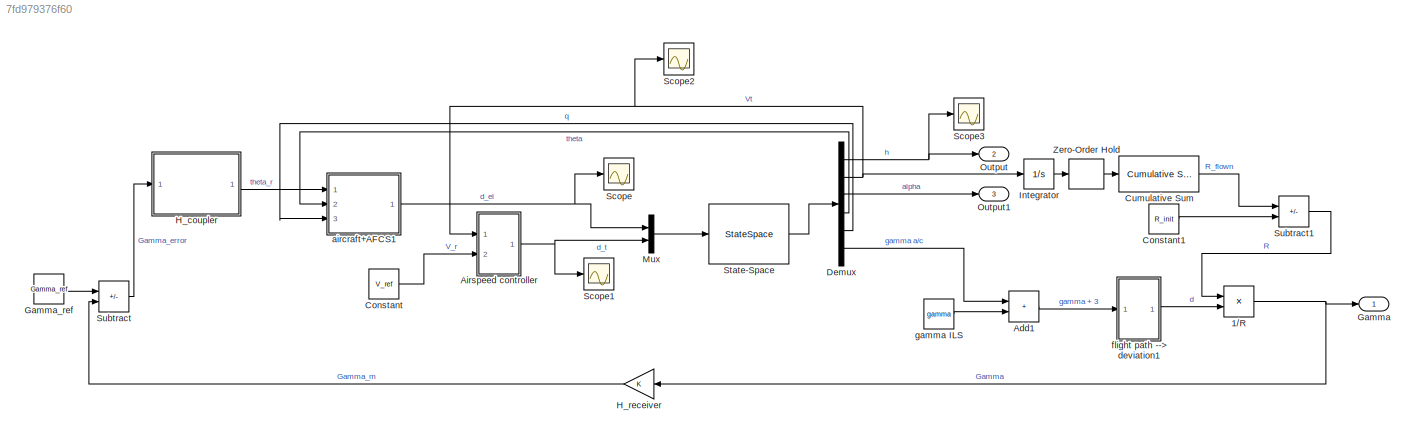
MODEL slx_7fd979376f60
KIND model
CONFIG AbsTol = auto
CONFIG EnableMultiTasking = off
CONFIG FixedStep = auto
CONFIG MaxStep = auto
CONFIG MinStep = auto
CONFIG RelTol = 1e-3
CONFIG SampleTimeConstraint = Unconstrained
CONFIG SolverName = VariableStepAuto
CONFIG StartTime = 0.0
CONFIG StopTime = 10.0
BLOCK [Product] 1//R
  Inputs = /*
  Ports = [2, 1]
BLOCK [Sum] Add1
  IconShape = rectangular
  Ports = [2, 1]
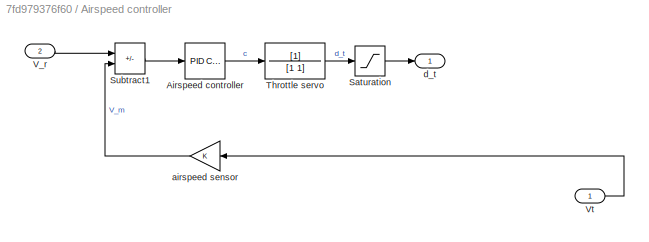
BLOCK [SubSystem] Airspeed controller
  Ports = [2, 1]
  RequestExecContextInheritance = off
BLOCK [Reference] Airspeed controller/Airspeed controller  REF=pid_lib/PID Controller
  Ports = [1, 1]
  SourceBlock = pid_lib/PID Controller
  SourceProductBaseCode = SL
  SourceType = PID 1dof
BLOCK [Saturate] Airspeed controller/Saturation
  LowerLimit = -1826.82
  UpperLimit = 16173.18
BLOCK [Sum] Airspeed controller/Subtract1
  IconShape = rectangular
  Inputs = +-
  Ports = [2, 1]
BLOCK [TransferFcn] Airspeed controller/Throttle servo
  Denominator = [1 1]
BLOCK [Inport] Airspeed controller/V_r
  Port = 2
BLOCK [Inport] Airspeed controller/Vt
BLOCK [Gain] Airspeed controller/airspeed sensor
BLOCK [Outport] Airspeed controller/d_t
BLOCK [Constant] Constant
  Value = V_ref
BLOCK [Constant] Constant1
  Value = R_init
BLOCK [Reference] Cumulative Sum  REF=dspmathops/Cumulative
Sum
  Ports = [1, 1]
  SourceBlock = dspmathops/Cumulative\nSum
  SourceProductBaseCode = DS
  SourceType = Cumulative Sum
  UserDataPersistent = on
BLOCK [Demux] Demux
  Outputs = 6
  Ports = [1, 6]
BLOCK [Outport] Gamma
  IconDisplay = Signal name
BLOCK [Constant] Gamma_ref
  Value = Gamma_ref
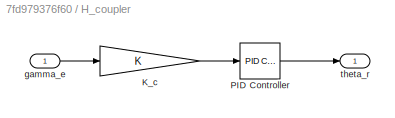
BLOCK [SubSystem] H_coupler
  Ports = [1, 1]
  RequestExecContextInheritance = off
BLOCK [Gain] H_coupler/K_c
BLOCK [Reference] H_coupler/PID Controller  REF=pid_lib/PID Controller
  Ports = [1, 1]
  SourceBlock = pid_lib/PID Controller
  SourceProductBaseCode = SL
  SourceType = PID 1dof
BLOCK [Inport] H_coupler/gamma_e
BLOCK [Outport] H_coupler/theta_r
BLOCK [Gain] H_receiver
BLOCK [Integrator] Integrator
  Ports = [1, 1]
BLOCK [Mux] Mux
  DisplayOption = bar
  Inputs = 2
  Ports = [2, 1]
BLOCK [Outport] Output
  IconDisplay = Signal name
  Port = 2
BLOCK [Outport] Output1
  IconDisplay = Signal name
  Port = 3
BLOCK [Scope] Scope
  Floating = off
  NumInputPorts = 1
  Ports = [1]
  ScopeSpecificationString = Simulink.scopes.TimeScopeBlockCfg('CurrentConfiguration', extmgr.ConfigurationSet(extmgr.Configuration('Core','General UI',true),extmgr.Configuration('Core','Source UI',true),extmgr.Configuration('Sources','WiredSimulink',true,'DataLoggingVariableName','ScopeData1'),extmgr.Configuration('Visuals','Time Domain',true,'SerializedDisplays',{struct('MinYLimReal','-23.41125','MaxYLimReal','2.60125','YLa...<+1367ch>
BLOCK [Scope] Scope1
  Floating = off
  NumInputPorts = 1
  Ports = [1]
  ScopeSpecificationString = Simulink.scopes.TimeScopeBlockCfg('CurrentConfiguration', extmgr.ConfigurationSet(extmgr.Configuration('Core','General UI',true),extmgr.Configuration('Core','Source UI',true),extmgr.Configuration('Sources','WiredSimulink',true,'DataLoggingVariableName','ScopeData2'),extmgr.Configuration('Visuals','Time Domain',true,'SerializedDisplays',{struct('MinYLimReal','-830.11158','MaxYLimReal','7471.00421',...<+1409ch>
BLOCK [Scope] Scope2
  Floating = off
  NumInputPorts = 1
  Ports = [1]
  ScopeSpecificationString = Simulink.scopes.TimeScopeBlockCfg('CurrentConfiguration', extmgr.ConfigurationSet(extmgr.Configuration('Core','General UI',true),extmgr.Configuration('Core','Source UI',true),extmgr.Configuration('Sources','WiredSimulink',true,'DataLoggingVariableName','ScopeData3'),extmgr.Configuration('Visuals','Time Domain',true,'SerializedDisplays',{struct('MinYLimReal','-8637.90482','MaxYLimReal','1293.10054'...<+1412ch>
BLOCK [Scope] Scope3
  Floating = off
  NumInputPorts = 1
  Ports = [1]
  ScopeSpecificationString = Simulink.scopes.TimeScopeBlockCfg('CurrentConfiguration', extmgr.ConfigurationSet(extmgr.Configuration('Core','General UI',true),extmgr.Configuration('Core','Source UI',true),extmgr.Configuration('Sources','WiredSimulink',true,'DataLoggingVariableName','ScopeData4'),extmgr.Configuration('Visuals','Time Domain',true,'SerializedDisplays',{struct('MinYLimReal','-1746.32673','MaxYLimReal','65716.94053...<+1386ch>
BLOCK [StateSpace] State-Space
  A = [0 0 -300 300 0; 0.0001317 -0.0291 2.13 -32.17 -2.895; 3.154e-06 -0.000697 -0.5447 4.55e-13 0.9152; 0 0 0 0 1; -4.699e-21 1.038e-18 0.3303 0 -0.8169]
  B = [0 0; -0.004534 0.001544; -0.001116 -9.493e-07; 0 0 ; -0.05702 0]
  C = [1 0 0 0 0; 0 1 0 0 0; 0 0 1 0 0; 0 0 0 1 0; 0 0 0 0 1; 0 0 -1 1 0]
  ContinuousStateAttributes = {'h', 'Vt', 'alpha', 'theta', 'q'}
  D = [0 0; 0 0; 0 0; 0 0; 0 0; 0 0]
  InitialCondition = [5000; 300; 10.4511; 10.4511; 0]
  Ports = [1, 1]
BLOCK [Sum] Subtract
  IconShape = rectangular
  Inputs = +-
  Ports = [2, 1]
BLOCK [Sum] Subtract1
  IconShape = rectangular
  Inputs = -+
  Ports = [2, 1]
BLOCK [ZeroOrderHold] Zero-Order Hold
  SampleTime = 0.1
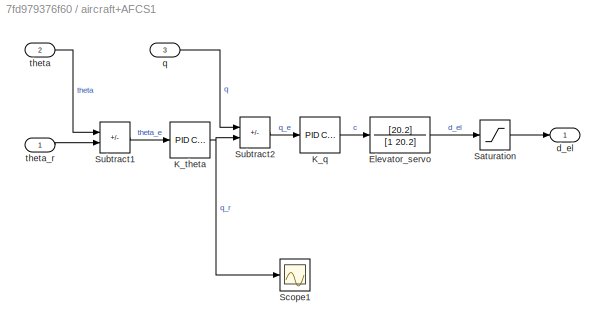
BLOCK [SubSystem] aircraft+AFCS1
  Ports = [3, 1]
  RequestExecContextInheritance = off
BLOCK [TransferFcn] aircraft+AFCS1/Elevator_servo
  ContinuousStateAttributes = 'elevator_servo'
  Denominator = [1 20.2]
  Numerator = [20.2]
BLOCK [Reference] aircraft+AFCS1/K_q  REF=pid_lib/PID Controller
  Ports = [1, 1]
  SourceBlock = pid_lib/PID Controller
  SourceProductBaseCode = SL
  SourceType = PID 1dof
BLOCK [Reference] aircraft+AFCS1/K_theta  REF=pid_lib/PID Controller
  Ports = [1, 1]
  SourceBlock = pid_lib/PID Controller
  SourceProductBaseCode = SL
  SourceType = PID 1dof
BLOCK [Saturate] aircraft+AFCS1/Saturation
  LowerLimit = -20.81
  UpperLimit = 29.19
BLOCK [Scope] aircraft+AFCS1/Scope1
  Floating = off
  NumInputPorts = 1
  Ports = [1]
  ScopeSpecificationString = Simulink.scopes.TimeScopeBlockCfg('CurrentConfiguration', extmgr.ConfigurationSet(extmgr.Configuration('Core','General UI',true),extmgr.Configuration('Core','Source UI',true),extmgr.Configuration('Sources','WiredSimulink',true,'DataLoggingVariableName','ScopeData1'),extmgr.Configuration('Visuals','Time Domain',true,'SerializedDisplays',{struct('MinYLimReal','-15.46925','MaxYLimReal','22.1951','YLa...<+1398ch>
BLOCK [Sum] aircraft+AFCS1/Subtract1
  IconShape = rectangular
  Inputs = -+
  Ports = [2, 1]
BLOCK [Sum] aircraft+AFCS1/Subtract2
  IconShape = rectangular
  Inputs = -+
  Ports = [2, 1]
BLOCK [Outport] aircraft+AFCS1/d_el
BLOCK [Inport] aircraft+AFCS1/q
  Port = 3
BLOCK [Inport] aircraft+AFCS1/theta
  Port = 2
BLOCK [Inport] aircraft+AFCS1/theta_r
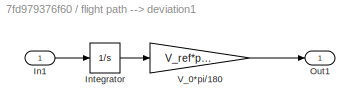
BLOCK [SubSystem] flight path --> deviation1
  Ports = [1, 1]
  RequestExecContextInheritance = off
BLOCK [Inport] flight path --> deviation1/In1
BLOCK [Integrator] flight path --> deviation1/Integrator
  Ports = [1, 1]
BLOCK [Outport] flight path --> deviation1/Out1
BLOCK [Gain] flight path --> deviation1/V_0*pi//180
  Gain = V_ref*pi/180
BLOCK [Constant] gamma ILS
  Value = gamma
NET 1//R:1 -> Gamma:1, H_receiver:1
LINE Add1:1 -> flight path --> deviation1:1
LINE Airspeed controller/Airspeed controller:1 -> Airspeed controller/Throttle servo:1
LINE Airspeed controller/Saturation:1 -> Airspeed controller/d_t:1
LINE Airspeed controller/Subtract1:1 -> Airspeed controller/Airspeed controller:1
LINE Airspeed controller/Throttle servo:1 -> Airspeed controller/Saturation:1
LINE Airspeed controller/V_r:1 -> Airspeed controller/Subtract1:1
LINE Airspeed controller/Vt:1 -> Airspeed controller/airspeed sensor:1
LINE Airspeed controller/airspeed sensor:1 -> Airspeed controller/Subtract1:2
NET Airspeed controller:1 -> Mux:2, Scope1:1
LINE Constant1:1 -> Subtract1:2
LINE Constant:1 -> Airspeed controller:2
LINE Cumulative Sum:1 -> Subtract1:1
NET Demux:1 -> Output:1, Scope3:1
NET Demux:2 -> Airspeed controller:1, Integrator:1, Scope2:1
LINE Demux:3 -> Output1:1
LINE Demux:4 -> aircraft+AFCS1:2
LINE Demux:5 -> aircraft+AFCS1:3
LINE Demux:6 -> Add1:1
LINE Gamma_ref:1 -> Subtract:1
LINE H_coupler/K_c:1 -> H_coupler/PID Controller:1
LINE H_coupler/PID Controller:1 -> H_coupler/theta_r:1
LINE H_coupler/gamma_e:1 -> H_coupler/K_c:1
LINE H_coupler:1 -> aircraft+AFCS1:1
LINE H_receiver:1 -> Subtract:2
LINE Integrator:1 -> Zero-Order Hold:1
LINE Mux:1 -> State-Space:1
LINE State-Space:1 -> Demux:1
LINE Subtract1:1 -> 1//R:1
LINE Subtract:1 -> H_coupler:1
LINE Zero-Order Hold:1 -> Cumulative Sum:1
LINE aircraft+AFCS1/Elevator_servo:1 -> aircraft+AFCS1/Saturation:1
LINE aircraft+AFCS1/K_q:1 -> aircraft+AFCS1/Elevator_servo:1
NET aircraft+AFCS1/K_theta:1 -> aircraft+AFCS1/Scope1:1, aircraft+AFCS1/Subtract2:2
LINE aircraft+AFCS1/Saturation:1 -> aircraft+AFCS1/d_el:1
LINE aircraft+AFCS1/Subtract1:1 -> aircraft+AFCS1/K_theta:1
LINE aircraft+AFCS1/Subtract2:1 -> aircraft+AFCS1/K_q:1
LINE aircraft+AFCS1/q:1 -> aircraft+AFCS1/Subtract2:1
LINE aircraft+AFCS1/theta:1 -> aircraft+AFCS1/Subtract1:1
LINE aircraft+AFCS1/theta_r:1 -> aircraft+AFCS1/Subtract1:2
NET aircraft+AFCS1:1 -> Mux:1, Scope:1
LINE flight path --> deviation1/In1:1 -> flight path --> deviation1/Integrator:1
LINE flight path --> deviation1/Integrator:1 -> flight path --> deviation1/V_0*pi//180:1
LINE flight path --> deviation1/V_0*pi//180:1 -> flight path --> deviation1/Out1:1
LINE flight path --> deviation1:1 -> 1//R:2
LINE gamma ILS:1 -> Add1:2
note: NET lines group one-source signal fan-out (src -> all destinations, sorted); 1:1 wires keep LINE
